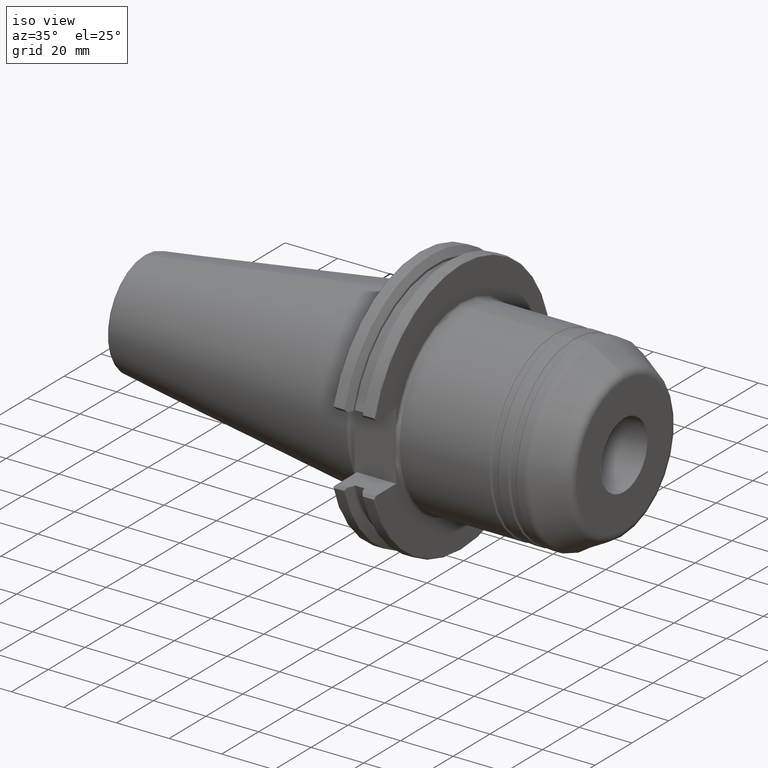
[diagram: clean part render]
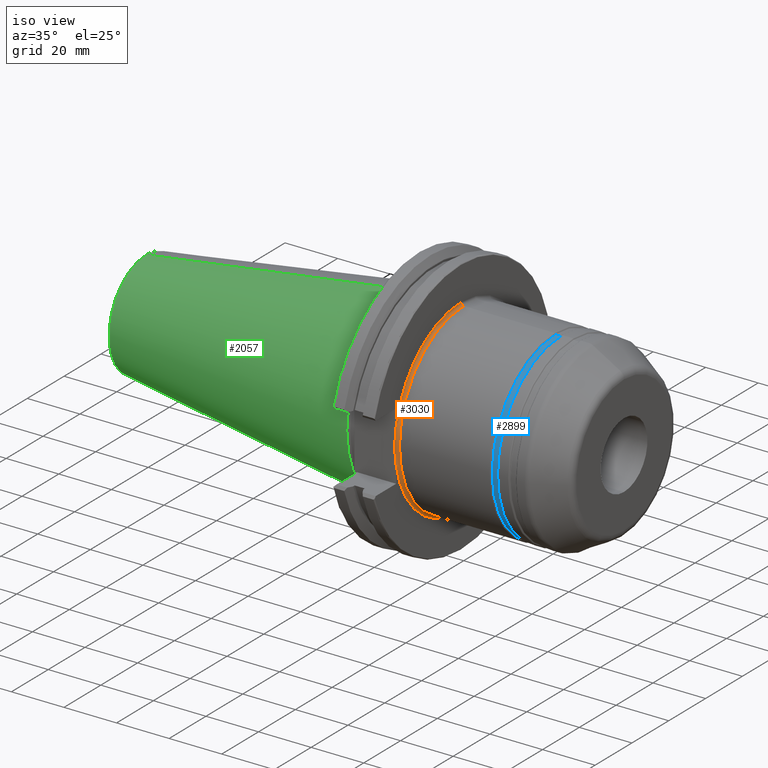
[diagram: same view with three faces highlighted in distinct colors, each labeled with its STEP entity id]
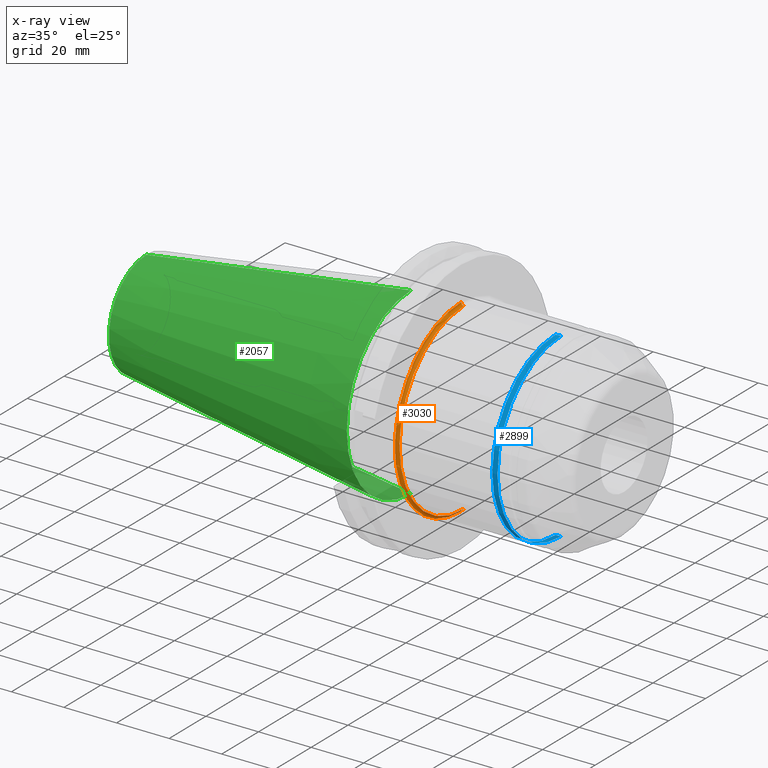
[diagram: x-ray of the same camera — body ghosted, the three highlighted faces saturated]
A machine part, iso view with three faces highlighted in distinct colors.
The next image is the same camera in x-ray (body ghosted, the three faces saturated) — at least one of them is partly hidden behind the body in this view.
Their STEP definitions:

[orange] entity #3030 — the highlighted toroidal blend (fillet) surface has major radius 35.95 mm and minor (blend) radius 1 mm.
#707=CARTESIAN_POINT('',(2.005E1,0.E0,3.595E1));
#708=DIRECTION('',(0.E0,1.E0,0.E0));
#709=DIRECTION('',(0.E0,0.E0,-1.E0));
#710=AXIS2_PLACEMENT_3D('',#707,#708,#709);
#712=CARTESIAN_POINT('',(2.005E1,0.E0,0.E0));
#713=DIRECTION('',(-1.E0,0.E0,0.E0));
#714=DIRECTION('',(0.E0,0.E0,-1.E0));
#715=AXIS2_PLACEMENT_3D('',#712,#713,#714);
#717=CARTESIAN_POINT('',(2.005E1,0.E0,-3.595E1));
#718=DIRECTION('',(0.E0,-1.E0,0.E0));
#719=DIRECTION('',(0.E0,0.E0,1.E0));
#720=AXIS2_PLACEMENT_3D('',#717,#718,#719);
#751=CARTESIAN_POINT('',(1.905E1,0.E0,0.E0));
#752=DIRECTION('',(1.E0,0.E0,0.E0));
#753=DIRECTION('',(0.E0,0.E0,1.E0));
#754=AXIS2_PLACEMENT_3D('',#751,#752,#753);
#756=CARTESIAN_POINT('',(1.905E1,0.E0,0.E0));
#757=DIRECTION('',(1.E0,0.E0,0.E0));
#758=DIRECTION('',(0.E0,-9.820862308762E-1,-1.884320437806E-1));
#759=AXIS2_PLACEMENT_3D('',#756,#757,#758);
#1223=CARTESIAN_POINT('',(1.905E1,0.E0,0.E0));
#1224=DIRECTION('',(-1.E0,0.E0,0.E0));
#1225=DIRECTION('',(0.E0,-9.820862308762E-1,-1.884320437806E-1));
#1226=AXIS2_PLACEMENT_3D('',#1223,#1224,#1225);
#1932=CARTESIAN_POINT('',(2.005E1,0.E0,-3.495E1));
#1933=VERTEX_POINT('',#1932);
#1982=CARTESIAN_POINT('',(2.005E1,0.E0,3.495E1));
#1983=VERTEX_POINT('',#1982);
#1984=CARTESIAN_POINT('',(1.905E1,-3.5306E1,6.774131973914E0));
#1985=CARTESIAN_POINT('',(1.905E1,-3.5306E1,-6.774131973914E0));
#1986=VERTEX_POINT('',#1984);
#1987=VERTEX_POINT('',#1985);
#1988=CARTESIAN_POINT('',(1.905E1,0.E0,-3.595E1));
#1989=CARTESIAN_POINT('',(1.905E1,0.E0,3.595E1));
#1990=VERTEX_POINT('',#1988);
#1991=VERTEX_POINT('',#1989);
#3012=CARTESIAN_POINT('',(2.005E1,0.E0,0.E0));
#3013=DIRECTION('',(1.E0,0.E0,0.E0));
#3014=DIRECTION('',(0.E0,0.E0,1.E0));
#3015=AXIS2_PLACEMENT_3D('',#3012,#3013,#3014);
#3016=TOROIDAL_SURFACE('',#3015,3.595E1,1.E0);
#3018=ORIENTED_EDGE('',*,*,#3017,.F.);
#3020=ORIENTED_EDGE('',*,*,#3019,.F.);
#3021=ORIENTED_EDGE('',*,*,#3005,.F.);
#3023=ORIENTED_EDGE('',*,*,#3022,.T.);
#3025=ORIENTED_EDGE('',*,*,#3024,.F.);
#3027=ORIENTED_EDGE('',*,*,#3026,.T.);
#3028=EDGE_LOOP('',(#3018,#3020,#3021,#3023,#3025,#3027));
#3029=FACE_OUTER_BOUND('',#3028,.F.);
#3030=ADVANCED_FACE('',(#3029),#3016,.F.);
#711=CIRCLE('',#710,1.E0);
#716=CIRCLE('',#715,3.495E1);
#721=CIRCLE('',#720,1.E0);
#755=CIRCLE('',#754,3.595E1);
#760=CIRCLE('',#759,3.595E1);
#1227=CIRCLE('',#1226,3.595E1);
#3005=EDGE_CURVE('',#1933,#1983,#716,.T.);
#3017=EDGE_CURVE('',#1991,#1986,#755,.T.);
#3019=EDGE_CURVE('',#1983,#1991,#711,.T.);
#3022=EDGE_CURVE('',#1933,#1990,#721,.T.);
#3024=EDGE_CURVE('',#1987,#1990,#760,.T.);
#3026=EDGE_CURVE('',#1987,#1986,#1227,.T.);

[blue] entity #2899 — the highlighted cylindrical surface (partial cylindrical patch) has radius 34.45 mm, axis along (1, 0, 0).
#618=DIRECTION('',(-1.E0,0.E0,0.E0));
#619=VECTOR('',#618,2.E0);
#620=CARTESIAN_POINT('',(5.7E1,0.E0,-3.445E1));
#621=LINE('',#620,#619);
#622=DIRECTION('',(-1.E0,0.E0,0.E0));
#623=VECTOR('',#622,2.E0);
#624=CARTESIAN_POINT('',(5.7E1,0.E0,3.445E1));
#625=LINE('',#624,#623);
#626=CARTESIAN_POINT('',(5.7E1,0.E0,0.E0));
#627=DIRECTION('',(-1.E0,0.E0,0.E0));
#628=DIRECTION('',(0.E0,0.E0,-1.E0));
#629=AXIS2_PLACEMENT_3D('',#626,#627,#628);
#641=CARTESIAN_POINT('',(5.5E1,0.E0,0.E0));
#642=DIRECTION('',(-1.E0,0.E0,0.E0));
#643=DIRECTION('',(0.E0,0.E0,-1.E0));
#644=AXIS2_PLACEMENT_3D('',#641,#642,#643);
#1922=CARTESIAN_POINT('',(5.7E1,0.E0,-3.445E1));
#1923=VERTEX_POINT('',#1922);
#1924=CARTESIAN_POINT('',(5.5E1,0.E0,-3.445E1));
#1925=VERTEX_POINT('',#1924);
#1972=CARTESIAN_POINT('',(5.7E1,0.E0,3.445E1));
#1973=VERTEX_POINT('',#1972);
#1974=CARTESIAN_POINT('',(5.5E1,0.E0,3.445E1));
#1975=VERTEX_POINT('',#1974);
#2887=CARTESIAN_POINT('',(1.59525E1,0.E0,0.E0));
#2888=DIRECTION('',(1.E0,0.E0,0.E0));
#2889=DIRECTION('',(0.E0,0.E0,1.E0));
#2890=AXIS2_PLACEMENT_3D('',#2887,#2888,#2889);
#2891=CYLINDRICAL_SURFACE('',#2890,3.445E1);
#2892=ORIENTED_EDGE('',*,*,#2877,.T.);
#2894=ORIENTED_EDGE('',*,*,#2893,.T.);
#2895=ORIENTED_EDGE('',*,*,#2880,.F.);
#2896=ORIENTED_EDGE('',*,*,#2851,.F.);
#2897=EDGE_LOOP('',(#2892,#2894,#2895,#2896));
#2898=FACE_OUTER_BOUND('',#2897,.F.);
#2899=ADVANCED_FACE('',(#2898),#2891,.T.);
#630=CIRCLE('',#629,3.445E1);
#645=CIRCLE('',#644,3.445E1);
#2851=EDGE_CURVE('',#1923,#1973,#630,.T.);
#2877=EDGE_CURVE('',#1923,#1925,#621,.T.);
#2880=EDGE_CURVE('',#1973,#1975,#625,.T.);
#2893=EDGE_CURVE('',#1925,#1975,#645,.T.);

[green] entity #2057 — the highlighted conical surface has half-angle 8.297 deg.
#20=CARTESIAN_POINT('',(6.536993168993E-13,0.E0,0.E0));
#21=DIRECTION('',(1.E0,0.E0,0.E0));
#22=DIRECTION('',(0.E0,0.E0,1.E0));
#23=AXIS2_PLACEMENT_3D('',#20,#21,#22);
#25=DIRECTION('',(-9.895329809878E-1,-2.431978913261E-10,1.443068935895E-1));
#26=VECTOR('',#25,1.018099536145E2);
#27=CARTESIAN_POINT('',(8.029843456825E-10,2.477204833236E-8,
-3.492499999978E1));
#28=LINE('',#27,#26);
#29=CARTESIAN_POINT('',(-1.007443068936E2,0.E0,0.E0));
#30=DIRECTION('',(-1.E0,0.E0,0.E0));
#31=DIRECTION('',(0.E0,0.E0,-1.E0));
#32=AXIS2_PLACEMENT_3D('',#29,#30,#31);
#34=DIRECTION('',(-9.895329809878E-1,2.431978882049E-10,-1.443068935895E-1));
#35=VECTOR('',#34,1.018099536145E2);
#36=CARTESIAN_POINT('',(8.029843456825E-10,-2.477204771811E-8,
3.492499999978E1));
#37=LINE('',#36,#35);
#1678=CARTESIAN_POINT('',(-1.007443068936E2,0.E0,-2.023312185719E1));
#1679=CARTESIAN_POINT('',(-1.007443068936E2,0.E0,2.023312185719E1));
#1680=VERTEX_POINT('',#1678);
#1681=VERTEX_POINT('',#1679);
#1682=CARTESIAN_POINT('',(6.536993168993E-13,0.E0,3.4925E1));
#1683=CARTESIAN_POINT('',(6.536993168993E-13,0.E0,-3.4925E1));
#1684=VERTEX_POINT('',#1682);
#1685=VERTEX_POINT('',#1683);
#2045=CARTESIAN_POINT('',(-5.037215344680E1,0.E0,0.E0));
#2046=DIRECTION('',(1.E0,0.E0,0.E0));
#2047=DIRECTION('',(0.E0,0.E0,1.E0));
#2048=AXIS2_PLACEMENT_3D('',#2045,#2046,#2047);
#2049=CONICAL_SURFACE('',#2048,2.757906092859E1,8.297145E0);
#2050=ORIENTED_EDGE('',*,*,#2036,.T.);
#2051=ORIENTED_EDGE('',*,*,#2011,.T.);
#2053=ORIENTED_EDGE('',*,*,#2052,.T.);
#2054=ORIENTED_EDGE('',*,*,#2007,.F.);
#2055=EDGE_LOOP('',(#2050,#2051,#2053,#2054));
#2056=FACE_OUTER_BOUND('',#2055,.F.);
#2057=ADVANCED_FACE('',(#2056),#2049,.T.);
#24=CIRCLE('',#23,3.4925E1);
#33=CIRCLE('',#32,2.023312185719E1);
#2007=EDGE_CURVE('',#1684,#1681,#37,.T.);
#2011=EDGE_CURVE('',#1685,#1680,#28,.T.);
#2036=EDGE_CURVE('',#1684,#1685,#24,.T.);
#2052=EDGE_CURVE('',#1680,#1681,#33,.T.);